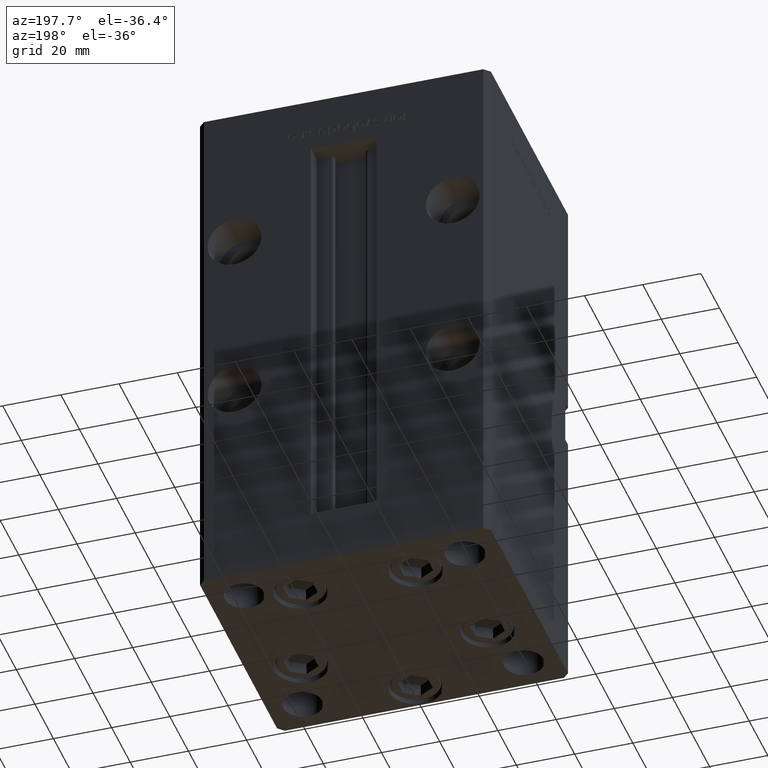
[diagram: clean part render]
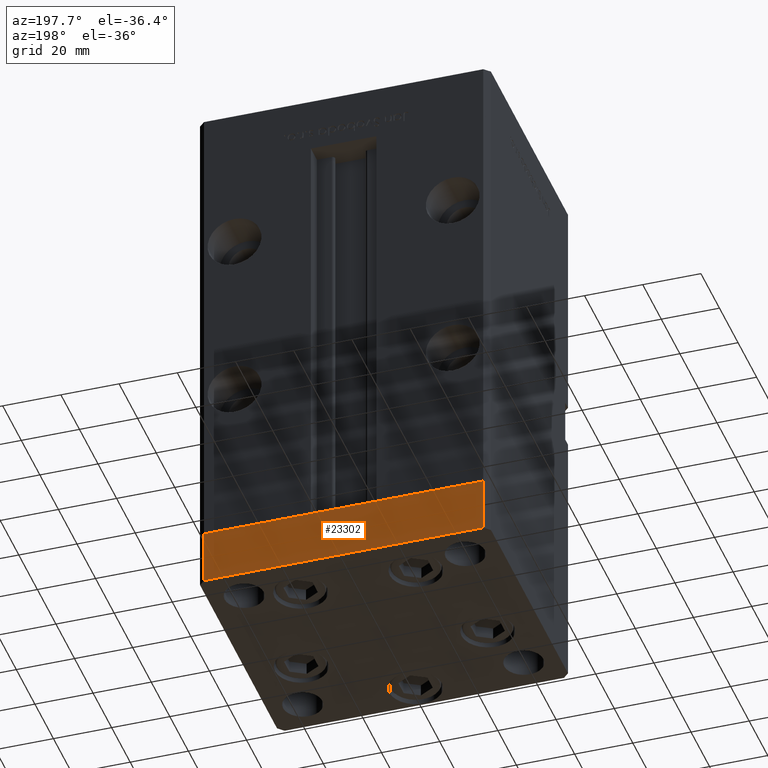
[diagram: same view with one face highlighted and labeled with its STEP entity id]
A machine part, auxiliary view. The second image highlights one B-rep face of the part: STEP entity #23302.
In plain terms, the highlighted planar face has unit normal (-0, 1, 0).
Its self-contained STEP definition (entity closure, byte-faithful):
#130 = EDGE_LOOP ( 'NONE', ( #38229, #37719, #15386, #11086 ) ) ;
#1198 = CARTESIAN_POINT ( 'NONE',  ( 47.99999999999990763, 43.50000000000000000, -19.00000000000000000 ) ) ;
#3348 = EDGE_CURVE ( 'NONE', #25477, #29087, #36977, .T. ) ;
#4361 = EDGE_CURVE ( 'NONE', #25548, #25477, #31068, .T. ) ;
#5536 = CARTESIAN_POINT ( 'NONE',  ( 47.99999999999990763, 43.50000000000000000, -19.00000000000000000 ) ) ;
#5781 = CARTESIAN_POINT ( 'NONE',  ( -48.00000000000000711, 43.49999999999996447, -19.00000000000000000 ) ) ;
#9473 = EDGE_CURVE ( 'NONE', #44755, #29087, #31597, .T. ) ;
#9764 = VECTOR ( 'NONE', #11189, 1000.000000000000000 ) ;
#11086 = ORIENTED_EDGE ( 'NONE', *, *, #9473, .T. ) ;
#11189 = DIRECTION ( 'NONE',  ( 0.000000000000000000, 0.000000000000000000, 1.000000000000000000 ) ) ;
#14695 = DIRECTION ( 'NONE',  ( 0.000000000000000000, 0.000000000000000000, 1.000000000000000000 ) ) ;
#15386 = ORIENTED_EDGE ( 'NONE', *, *, #24904, .T. ) ;
#17073 = CARTESIAN_POINT ( 'NONE',  ( 47.99999999999990763, 43.50000000000000000, 0.000000000000000000 ) ) ;
#17806 = LINE ( 'NONE', #30160, #52155 ) ;
#17854 = FACE_OUTER_BOUND ( 'NONE', #130, .T. ) ;
#18325 = VECTOR ( 'NONE', #14695, 1000.000000000000000 ) ;
#18977 = CARTESIAN_POINT ( 'NONE',  ( 47.99999999999990763, 43.50000000000000000, -19.00000000000000000 ) ) ;
#20865 = DIRECTION ( 'NONE',  ( -1.000000000000000000, -3.614007241618350743E-16, 0.000000000000000000 ) ) ;
#22690 = DIRECTION ( 'NONE',  ( -1.000000000000000000, -3.614007241618350743E-16, 0.000000000000000000 ) ) ;
#23255 = CARTESIAN_POINT ( 'NONE',  ( -48.00000000000000711, 43.49999999999996447, -19.00000000000000000 ) ) ;
#23302 = ADVANCED_FACE ( 'NONE', ( #17854 ), #46330, .T. ) ;
#24904 = EDGE_CURVE ( 'NONE', #25548, #44755, #17806, .T. ) ;
#25447 = AXIS2_PLACEMENT_3D ( 'NONE', #1198, #50923, #22690 ) ;
#25477 = VERTEX_POINT ( 'NONE', #17073 ) ;
#25548 = VERTEX_POINT ( 'NONE', #5536 ) ;
#29087 = VERTEX_POINT ( 'NONE', #42740 ) ;
#30160 = CARTESIAN_POINT ( 'NONE',  ( 47.99999999999990763, 43.50000000000000000, -19.00000000000000000 ) ) ;
#30441 = DIRECTION ( 'NONE',  ( -1.000000000000000000, -3.614007241618350743E-16, 0.000000000000000000 ) ) ;
#31068 = LINE ( 'NONE', #18977, #18325 ) ;
#31597 = LINE ( 'NONE', #23255, #9764 ) ;
#33999 = CARTESIAN_POINT ( 'NONE',  ( 47.99999999999990763, 43.50000000000000000, 0.000000000000000000 ) ) ;
#36977 = LINE ( 'NONE', #33999, #40569 ) ;
#37719 = ORIENTED_EDGE ( 'NONE', *, *, #4361, .F. ) ;
#38229 = ORIENTED_EDGE ( 'NONE', *, *, #3348, .F. ) ;
#40569 = VECTOR ( 'NONE', #20865, 1000.000000000000000 ) ;
#42740 = CARTESIAN_POINT ( 'NONE',  ( -48.00000000000000711, 43.49999999999996447, 0.000000000000000000 ) ) ;
#44755 = VERTEX_POINT ( 'NONE', #5781 ) ;
#46330 = PLANE ( 'NONE',  #25447 ) ;
#50923 = DIRECTION ( 'NONE',  ( -3.614007241618350743E-16, 1.000000000000000000, 0.000000000000000000 ) ) ;
#52155 = VECTOR ( 'NONE', #30441, 1000.000000000000000 ) ;